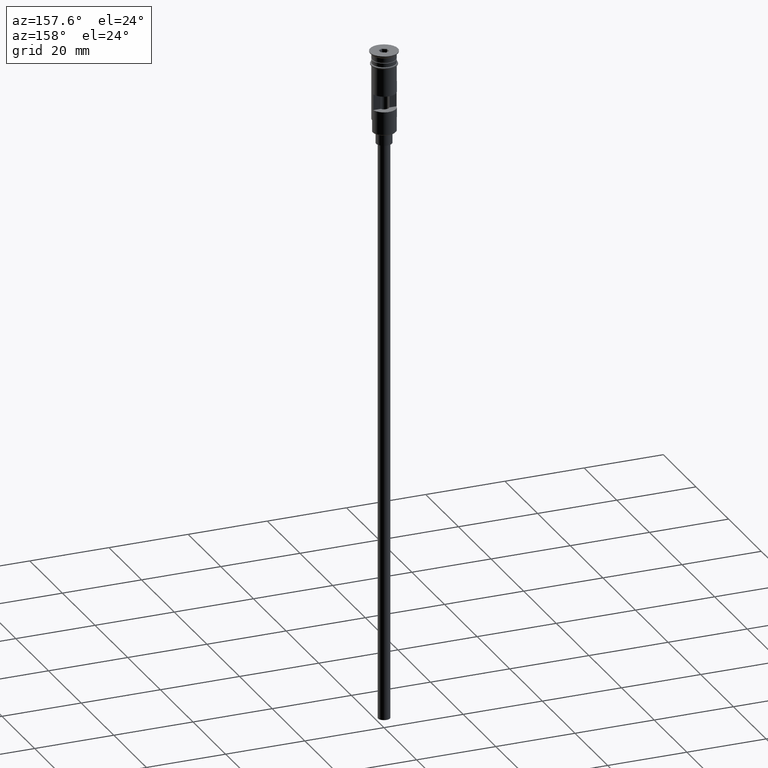
[diagram: clean part render]
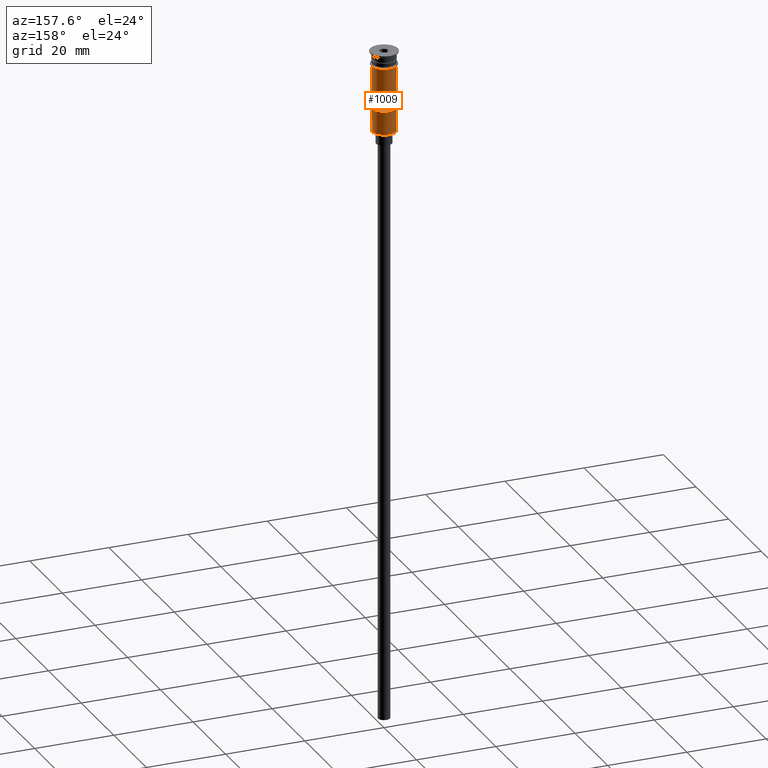
[diagram: same view with one face highlighted and labeled with its STEP entity id]
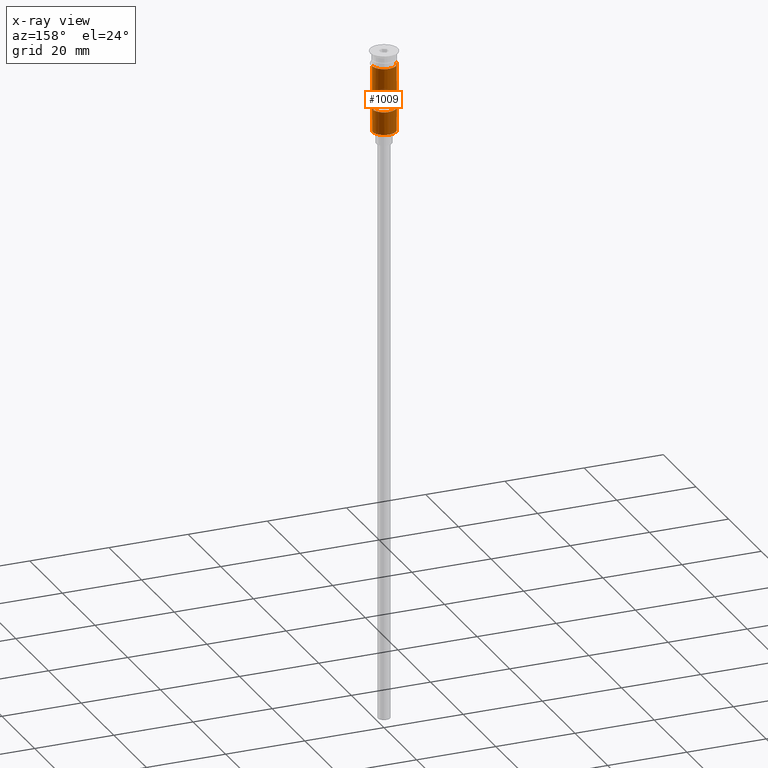
[diagram: x-ray of the same camera — body ghosted, the highlighted face saturated]
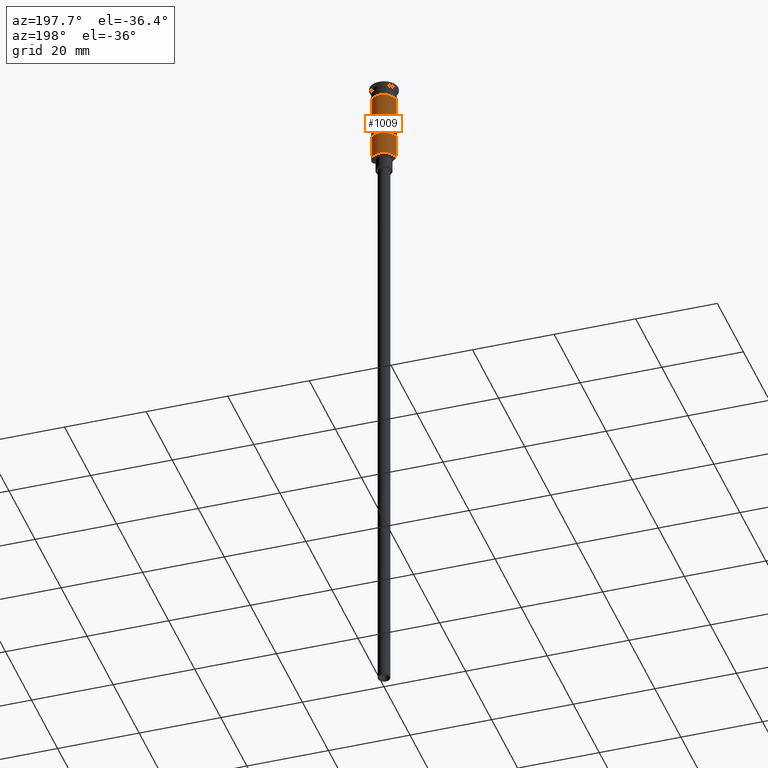
[diagram: same view with one face highlighted and labeled with its STEP entity id]
A machine part, auxiliary view. The second image highlights one B-rep face of the part: STEP entity #1009.
The next image is the same camera in x-ray: the body ghosted, the highlighted face saturated — about 0% of this face is hidden behind the body in this view.
A second angle (auxiliary view) of the same face is appended — the face is thin or edge-on in the first view.
In plain terms, the highlighted cylindrical surface (edge-blend (fillet) strip) has radius 3 mm, axis along (-0, -0, 1).
Its self-contained STEP definition (entity closure, byte-faithful):
#11 = VERTEX_POINT ( 'NONE', #1124 ) ;
#35 = CARTESIAN_POINT ( 'NONE',  ( 2.999999999999995115, 3.673940397442053952E-16, -20.50000000000000000 ) ) ;
#62 = CARTESIAN_POINT ( 'NONE',  ( 0.000000000000000000, 0.000000000000000000, -3.499999999999998668 ) ) ;
#65 = LINE ( 'NONE', #1309, #304 ) ;
#128 = VERTEX_POINT ( 'NONE', #1367 ) ;
#168 = DIRECTION ( 'NONE',  ( -0.000000000000000000, -0.000000000000000000, 1.000000000000000000 ) ) ;
#188 = CARTESIAN_POINT ( 'NONE',  ( -2.939387691339810260, 0.5999999999999994227, -10.50000000000000000 ) ) ;
#190 = EDGE_LOOP ( 'NONE', ( #428, #801, #1180, #775, #1591, #973 ) ) ;
#205 = VECTOR ( 'NONE', #336, 1000.000000000000000 ) ;
#213 = CARTESIAN_POINT ( 'NONE',  ( 0.000000000000000000, 0.000000000000000000, -20.29999999999995808 ) ) ;
#216 = VERTEX_POINT ( 'NONE', #722 ) ;
#224 = LINE ( 'NONE', #1347, #329 ) ;
#230 = EDGE_CURVE ( 'NONE', #1496, #1487, #1078, .T. ) ;
#234 = CARTESIAN_POINT ( 'NONE',  ( 0.000000000000000000, 0.000000000000000000, 0.000000000000000000 ) ) ;
#242 = FACE_OUTER_BOUND ( 'NONE', #190, .T. ) ;
#297 = CARTESIAN_POINT ( 'NONE',  ( 2.939387691339810260, 0.5999999999999994227, -14.50000000000000000 ) ) ;
#304 = VECTOR ( 'NONE', #434, 1000.000000000000000 ) ;
#312 = DIRECTION ( 'NONE',  ( 0.000000000000000000, 0.000000000000000000, 1.000000000000000000 ) ) ;
#327 = AXIS2_PLACEMENT_3D ( 'NONE', #447, #967, #695 ) ;
#329 = VECTOR ( 'NONE', #954, 1000.000000000000000 ) ;
#336 = DIRECTION ( 'NONE',  ( -0.000000000000000000, -0.000000000000000000, 1.000000000000000000 ) ) ;
#377 = DIRECTION ( 'NONE',  ( -1.000000000000000000, 0.000000000000000000, 0.000000000000000000 ) ) ;
#385 = CARTESIAN_POINT ( 'NONE',  ( -2.939387691339810260, 0.5999999999999994227, -14.50000000000000000 ) ) ;
#421 = LINE ( 'NONE', #1255, #1522 ) ;
#428 = ORIENTED_EDGE ( 'NONE', *, *, #866, .T. ) ;
#434 = DIRECTION ( 'NONE',  ( -0.000000000000000000, -0.000000000000000000, 1.000000000000000000 ) ) ;
#447 = CARTESIAN_POINT ( 'NONE',  ( 0.000000000000000000, 0.000000000000000000, -10.50000000000000000 ) ) ;
#464 = EDGE_CURVE ( 'NONE', #1147, #1562, #421, .T. ) ;
#491 = VERTEX_POINT ( 'NONE', #188 ) ;
#518 = EDGE_CURVE ( 'NONE', #1322, #1147, #1381, .T. ) ;
#534 = DIRECTION ( 'NONE',  ( -0.000000000000000000, -0.000000000000000000, 1.000000000000000000 ) ) ;
#572 = LINE ( 'NONE', #959, #205 ) ;
#604 = FACE_BOUND ( 'NONE', #819, .T. ) ;
#621 = VERTEX_POINT ( 'NONE', #873 ) ;
#649 = ORIENTED_EDGE ( 'NONE', *, *, #887, .F. ) ;
#693 = AXIS2_PLACEMENT_3D ( 'NONE', #62, #168, #783 ) ;
#695 = DIRECTION ( 'NONE',  ( 1.000000000000000000, 0.000000000000000000, 0.000000000000000000 ) ) ;
#706 = CARTESIAN_POINT ( 'NONE',  ( 2.999999999999995115, 3.673940397442053952E-16, -20.29999999999995808 ) ) ;
#722 = CARTESIAN_POINT ( 'NONE',  ( 2.939387691339810260, 0.5999999999999994227, -10.50000000000000000 ) ) ;
#741 = AXIS2_PLACEMENT_3D ( 'NONE', #234, #840, #1216 ) ;
#775 = ORIENTED_EDGE ( 'NONE', *, *, #464, .F. ) ;
#783 = DIRECTION ( 'NONE',  ( 1.000000000000000000, 0.000000000000000000, 0.000000000000000000 ) ) ;
#789 = CARTESIAN_POINT ( 'NONE',  ( 2.999999999999996891, 3.673940397442055924E-16, -17.30000000000000782 ) ) ;
#801 = ORIENTED_EDGE ( 'NONE', *, *, #893, .T. ) ;
#802 = LINE ( 'NONE', #1187, #900 ) ;
#806 = EDGE_CURVE ( 'NONE', #491, #216, #1075, .T. ) ;
#819 = EDGE_LOOP ( 'NONE', ( #1158, #1538, #649, #1334 ) ) ;
#826 = DIRECTION ( 'NONE',  ( -0.000000000000000000, -0.000000000000000000, 1.000000000000000000 ) ) ;
#840 = DIRECTION ( 'NONE',  ( -0.000000000000000000, -0.000000000000000000, 1.000000000000000000 ) ) ;
#843 = EDGE_CURVE ( 'NONE', #1322, #11, #1252, .T. ) ;
#866 = EDGE_CURVE ( 'NONE', #11, #621, #802, .T. ) ;
#873 = CARTESIAN_POINT ( 'NONE',  ( -2.999999999999995115, 0.000000000000000000, -17.30000000000000782 ) ) ;
#887 = EDGE_CURVE ( 'NONE', #1487, #491, #572, .T. ) ;
#893 = EDGE_CURVE ( 'NONE', #621, #128, #65, .T. ) ;
#900 = VECTOR ( 'NONE', #826, 1000.000000000000000 ) ;
#945 = DIRECTION ( 'NONE',  ( -1.000000000000000000, 0.000000000000000000, 0.000000000000000000 ) ) ;
#954 = DIRECTION ( 'NONE',  ( 0.000000000000000000, 0.000000000000000000, -1.000000000000000000 ) ) ;
#959 = CARTESIAN_POINT ( 'NONE',  ( -2.939387691339810260, 0.5999999999999994227, 0.000000000000000000 ) ) ;
#967 = DIRECTION ( 'NONE',  ( -0.000000000000000000, 0.000000000000000000, -1.000000000000000000 ) ) ;
#973 = ORIENTED_EDGE ( 'NONE', *, *, #843, .T. ) ;
#980 = CIRCLE ( 'NONE', #693, 2.999999999999998668 ) ;
#1009 = ADVANCED_FACE ( 'NONE', ( #604, #242 ), #1385, .T. ) ;
#1048 = VECTOR ( 'NONE', #534, 1000.000000000000000 ) ;
#1052 = AXIS2_PLACEMENT_3D ( 'NONE', #1121, #1486, #377 ) ;
#1075 = CIRCLE ( 'NONE', #327, 2.999999999999996891 ) ;
#1078 = CIRCLE ( 'NONE', #1052, 2.999999999999996891 ) ;
#1121 = CARTESIAN_POINT ( 'NONE',  ( 0.000000000000000000, 0.000000000000000000, -14.50000000000000000 ) ) ;
#1124 = CARTESIAN_POINT ( 'NONE',  ( -2.999999999999995115, 0.000000000000000000, -20.29999999999995808 ) ) ;
#1147 = VERTEX_POINT ( 'NONE', #789 ) ;
#1158 = ORIENTED_EDGE ( 'NONE', *, *, #1276, .F. ) ;
#1180 = ORIENTED_EDGE ( 'NONE', *, *, #1566, .F. ) ;
#1187 = CARTESIAN_POINT ( 'NONE',  ( -2.999999999999995115, 0.000000000000000000, -20.50000000000000000 ) ) ;
#1216 = DIRECTION ( 'NONE',  ( 1.000000000000000000, 0.000000000000000000, 0.000000000000000000 ) ) ;
#1252 = CIRCLE ( 'NONE', #1595, 2.999999999999996891 ) ;
#1255 = CARTESIAN_POINT ( 'NONE',  ( 2.999999999999996891, 0.000000000000000000, 0.000000000000000000 ) ) ;
#1271 = DIRECTION ( 'NONE',  ( -0.000000000000000000, -0.000000000000000000, 1.000000000000000000 ) ) ;
#1276 = EDGE_CURVE ( 'NONE', #216, #1496, #224, .T. ) ;
#1309 = CARTESIAN_POINT ( 'NONE',  ( -2.999999999999996891, 3.673940397442055924E-16, 0.000000000000000000 ) ) ;
#1322 = VERTEX_POINT ( 'NONE', #706 ) ;
#1334 = ORIENTED_EDGE ( 'NONE', *, *, #230, .F. ) ;
#1347 = CARTESIAN_POINT ( 'NONE',  ( 2.939387691339810260, 0.5999999999999994227, 0.000000000000000000 ) ) ;
#1367 = CARTESIAN_POINT ( 'NONE',  ( -2.999999999999999112, 3.673940397442058389E-16, -3.499999999999998668 ) ) ;
#1381 = LINE ( 'NONE', #35, #1048 ) ;
#1385 = CYLINDRICAL_SURFACE ( 'NONE', #741, 2.999999999999996891 ) ;
#1486 = DIRECTION ( 'NONE',  ( 0.000000000000000000, 0.000000000000000000, 1.000000000000000000 ) ) ;
#1487 = VERTEX_POINT ( 'NONE', #385 ) ;
#1496 = VERTEX_POINT ( 'NONE', #297 ) ;
#1522 = VECTOR ( 'NONE', #1271, 1000.000000000000000 ) ;
#1528 = CARTESIAN_POINT ( 'NONE',  ( 2.999999999999998668, 0.000000000000000000, -3.499999999999998668 ) ) ;
#1538 = ORIENTED_EDGE ( 'NONE', *, *, #806, .F. ) ;
#1562 = VERTEX_POINT ( 'NONE', #1528 ) ;
#1566 = EDGE_CURVE ( 'NONE', #1562, #128, #980, .T. ) ;
#1591 = ORIENTED_EDGE ( 'NONE', *, *, #518, .F. ) ;
#1595 = AXIS2_PLACEMENT_3D ( 'NONE', #213, #312, #945 ) ;